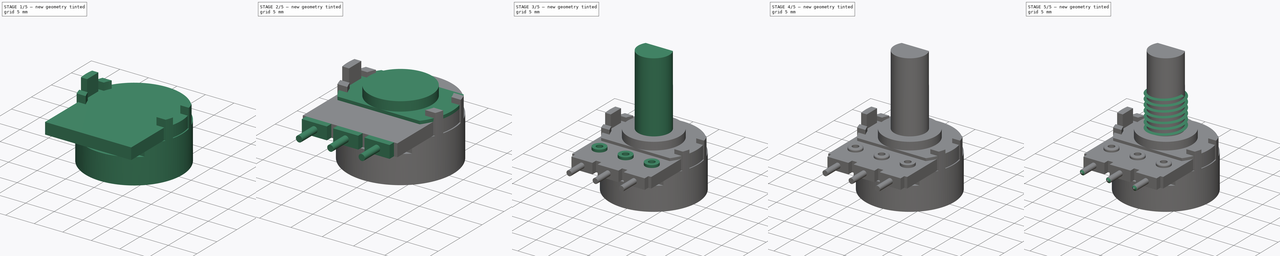
[diagram: build sequence overview — one tinted view per stage of 5, left to right]
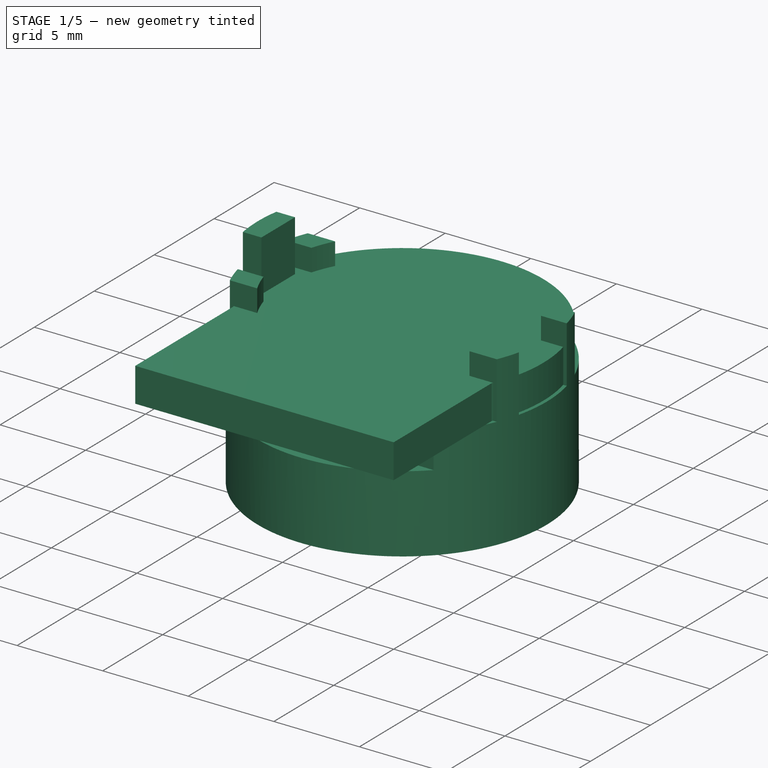
[diagram: stage 1 of 5 — iso view after this stage's code; geometry added in this stage tinted green]
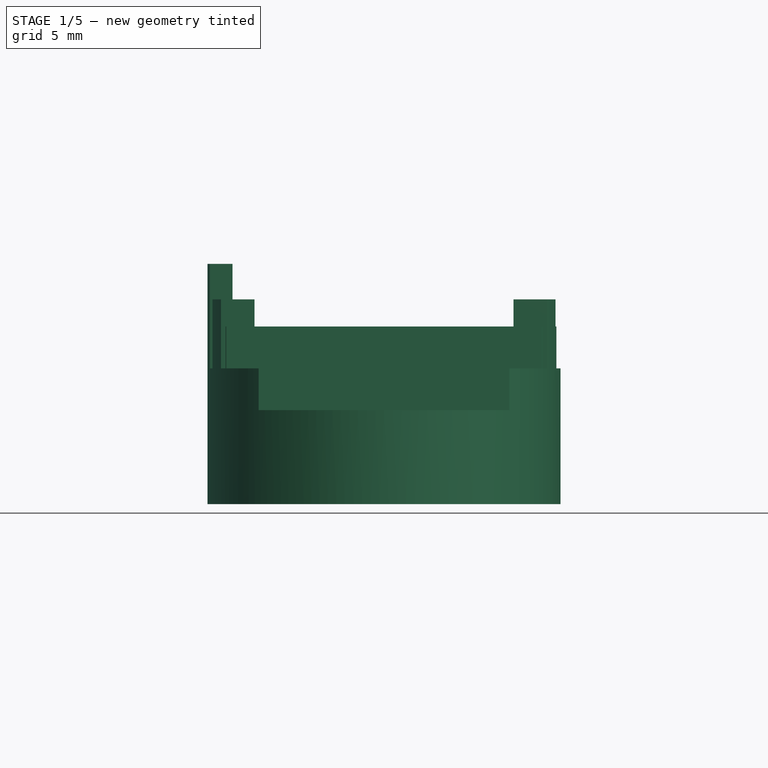
[diagram: stage 1 of 5 — front view after this stage's code; geometry added in this stage tinted green]
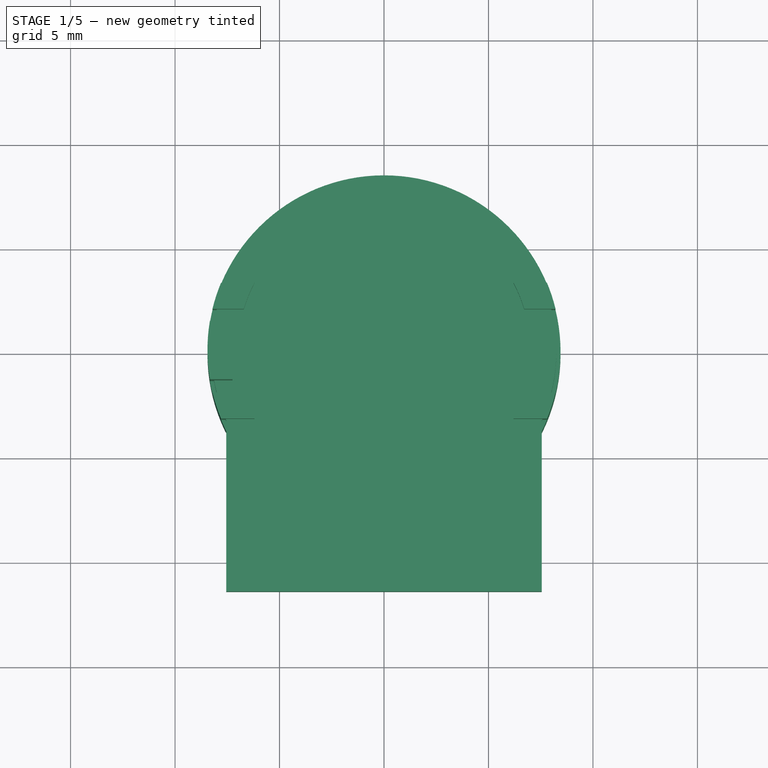
[diagram: stage 1 of 5 — top view after this stage's code; geometry added in this stage tinted green]
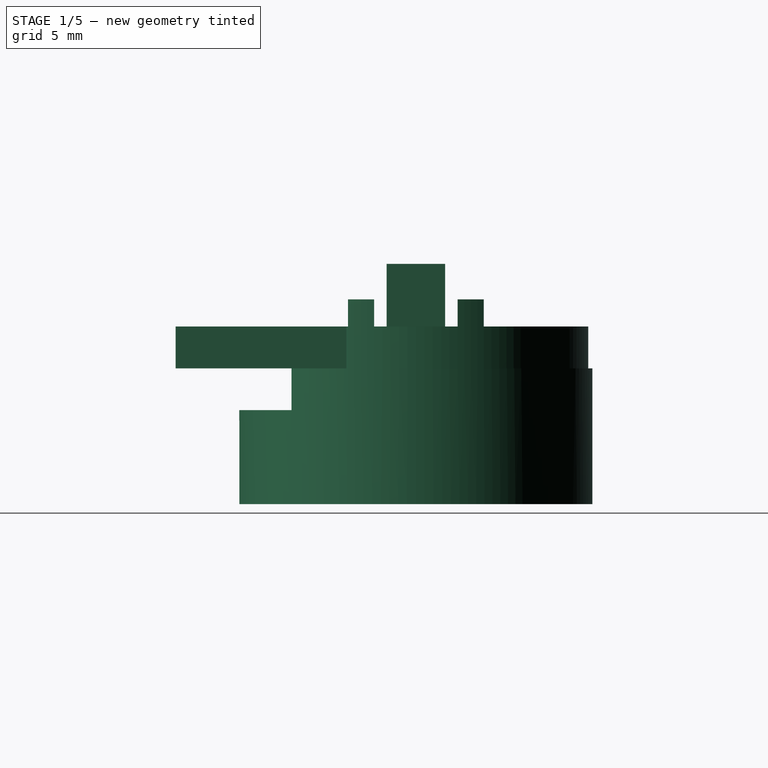
[diagram: stage 1 of 5 — right view after this stage's code; geometry added in this stage tinted green]
FCSTD DOCUMENT  (FreeCAD 0.19R24276 (Git))
Label: potenciometro
License: All rights reserved
LicenseURL: http://en.wikipedia.org/wiki/All_rights_reserved
objects: Sketcher::SketchObject×18, PartDesign::Pad×11, PartDesign::Pocket×5, PartDesign::Fillet×3, PartDesign::Chamfer×3, Part::Helix×1, Part::Sweep×1, PartDesign::Body×1
note: 65 computed .brp shape members not serialized (recipe doc carries the construction recipe); baked Part::Feature solids carry a one-line shape summary decoded from their .brp

FEATURE [Sketcher::SketchObject] Sketch
  FullyConstrained = true
  MapMode = 5
  Support = -> [XY_Plane]
  sketch-geometry (1):
    g0: Circle CenterX=0 CenterY=0 CenterZ=0 NormalX=0 NormalY=0 NormalZ=1 AngleXU=0 Radius=8.45
  constraints (2):
    c: Coincident(g0,g-1)
    c: Diameter(g0) = 16.9
FEATURE [PartDesign::Pad] Pad  label="base circular"
  Direction = (1,1,1)
  Length = 6.5
  Length2 = 100
  Profile = -> Sketch
  Type = 0
FEATURE [Sketcher::SketchObject] Sketch001
  FullyConstrained = false
  MapMode = 5
  Placement = pos=(0,0,6.5) rot=(0,0,1;0rad)
  Support = -> [Pad]
  sketch-geometry (8):
    g0: Circle CenterX=0 CenterY=0 CenterZ=0 NormalX=0 NormalY=0 NormalZ=1 AngleXU=0 Radius=8.45
    g1: LineSegment StartX=0 StartY=0 StartZ=0 EndX=0 EndY=-8.45 EndZ=0
    g2: GeomPoint X=0 Y=-5.95 Z=0
    g3: LineSegment StartX=0 StartY=-5.95 StartZ=0 EndX=8.5981 EndY=-5.95 EndZ=0
    g4: LineSegment StartX=0 StartY=-5.95 StartZ=0 EndX=-7.67045 EndY=-5.95 EndZ=0
    g5: LineSegment StartX=-7.67045 StartY=-5.95 StartZ=0 EndX=-7.67045 EndY=-9.14798 EndZ=0
    g6: LineSegment StartX=-7.67045 StartY=-9.14798 StartZ=0 EndX=8.5981 EndY=-9.14798 EndZ=0
    g7: LineSegment StartX=8.5981 StartY=-9.14798 StartZ=0 EndX=8.5981 EndY=-5.95 EndZ=0
  constraints (15):
    c: Coincident(g0,g-1)
    c: Diameter(g0) = 16.9
    c: Coincident(g1,g-1)
    c: PointOnObject(g1,g0)
    c: Vertical(g1)
    c: PointOnObject(g2,g1)
    c: DistanceY(g1,g2) = 2.5
    c: Coincident(g3,g2)
    c: Horizontal(g3)
    c: Coincident(g4,g3)
    c: Horizontal(g4)
    c: Vertical(g5)
    c: Horizontal(g6)
    c: Coincident(g7,g3)
    c: Vertical(g7)
FEATURE [PartDesign::Pocket] Pocket  label="base extrude"
  BaseFeature = -> Pad
  Length = 2
  Length2 = 100
  Profile = -> Sketch001
  Type = 0
FEATURE [Sketcher::SketchObject] Sketch002
  FullyConstrained = false
  MapMode = 5
  Placement = pos=(0,0,6.5) rot=(0,0,1;0rad)
  Support = -> [Pocket]
  sketch-geometry (8):
    g0: ArcOfCircle CenterX=0 CenterY=0 CenterZ=0 NormalX=0 NormalY=0 NormalZ=1 AngleXU=0 Radius=8.45 StartAngle=2.97514 EndAngle=3.30804
    g1: LineSegment StartX=0 StartY=0 StartZ=0 EndX=0 EndY=1.4 EndZ=0
    g2: LineSegment StartX=0 StartY=0 StartZ=0 EndX=0 EndY=-1.4 EndZ=0
    g3: GeomPoint X=-7.25 Y=0 Z=0
    g4: LineSegment StartX=-7.25 StartY=0 StartZ=0 EndX=-7.25 EndY=1.4 EndZ=0
    g5: LineSegment StartX=-7.25 StartY=0 StartZ=0 EndX=-7.25 EndY=-1.4 EndZ=0
    g6: LineSegment StartX=-8.33322 StartY=1.4 StartZ=0 EndX=-7.25 EndY=1.4 EndZ=0
    g7: LineSegment StartX=-8.33322 StartY=-1.4 StartZ=0 EndX=-7.25 EndY=-1.4 EndZ=0
  constraints (15):
    c: Coincident(g0,g-1)
    c: Diameter(g0) = 16.9
    c: Coincident(g1,g0)
    c: PointOnObject(g1,g-2)
    c: Coincident(g2,g0)
    c: Symmetric(g2,g1,g0)
    c: DistanceY(g2,g1) = 2.8
    c: Coincident(g4,g3)
    c: Vertical(g4)
    c: Coincident(g5,g4)
    c: Vertical(g5)
    c: Coincident(g6,g4)
    c: Coincident(g7,g5)
    c: Coincident(g0,g6)
    c: Coincident(g0,g7)
FEATURE [PartDesign::Pad] Pad001  label="cubo costado"
  BaseFeature = -> Pocket
  Direction = (1,1,1)
  Length = 5
  Length2 = 100
  Profile = -> Sketch002
  Type = 0
FEATURE [Sketcher::SketchObject] Sketch003
  FullyConstrained = false
  MapMode = 5
  Placement = pos=(0,0,6.5) rot=(0,0,1;0rad)
  Support = -> [Pad001]
  sketch-geometry (28):
    g0: LineSegment StartX=0 StartY=0 StartZ=0 EndX=0 EndY=8.45 EndZ=0
    g1: LineSegment StartX=0 StartY=0 StartZ=0 EndX=-1.6e-15 EndY=-8.45 EndZ=0
    g2: LineSegment StartX=0 StartY=0 StartZ=0 EndX=7.8 EndY=0 EndZ=0
    g3: LineSegment StartX=0 StartY=0 StartZ=0 EndX=-7.8 EndY=0 EndZ=0
    g4: LineSegment StartX=-7.8 StartY=0 StartZ=0 EndX=-7.8 EndY=3.25 EndZ=0
    g5: LineSegment StartX=-7.8 StartY=0 StartZ=0 EndX=-7.8 EndY=-3.25 EndZ=0
    g6: LineSegment StartX=7.8 StartY=0 StartZ=0 EndX=7.8 EndY=3.25 EndZ=0
    g7: LineSegment StartX=7.8 StartY=0 StartZ=0 EndX=7.8 EndY=-3.25 EndZ=0
    g8: ArcOfCircle CenterX=0 CenterY=0 CenterZ=0 NormalX=0 NormalY=0 NormalZ=1 AngleXU=0 Radius=8.45 StartAngle=5.88839 EndAngle=6.04423
    g9: ArcOfCircle CenterX=0 CenterY=0 CenterZ=0 NormalX=0 NormalY=0 NormalZ=1 AngleXU=0 Radius=7 StartAngle=5.80036 EndAngle=5.99343
    g10: LineSegment StartX=7.8 StartY=-3.25 StartZ=0 EndX=6.1998 EndY=-3.25 EndZ=0
    g11: GeomPoint X=-7.8 Y=2 Z=0
    g12: GeomPoint X=7.8 Y=2 Z=0
    g13: LineSegment StartX=7.8 StartY=0 StartZ=0 EndX=7.8 EndY=-2 EndZ=0
    g14: LineSegment StartX=-7.8 StartY=0 StartZ=0 EndX=-7.8 EndY=-2 EndZ=0
    g15: ArcOfCircle CenterX=0 CenterY=0 CenterZ=0 NormalX=0 NormalY=0 NormalZ=1 AngleXU=0 Radius=7 StartAngle=0.289752 EndAngle=0.482828
    g16: ArcOfCircle CenterX=0 CenterY=0 CenterZ=0 NormalX=0 NormalY=0 NormalZ=1 AngleXU=0 Radius=7 StartAngle=2.65876 EndAngle=2.85184
    g17: ArcOfCircle CenterX=0 CenterY=0 CenterZ=0 NormalX=0 NormalY=0 NormalZ=1 AngleXU=0 Radius=7 StartAngle=3.43134 EndAngle=3.62442
    g18: ArcOfCircle CenterX=0 CenterY=0 CenterZ=0 NormalX=0 NormalY=0 NormalZ=1 AngleXU=0 Radius=8.45 StartAngle=2.7468 EndAngle=2.90264
    g19: ArcOfCircle CenterX=0 CenterY=0 CenterZ=0 NormalX=0 NormalY=0 NormalZ=1 AngleXU=0 Radius=8.45 StartAngle=0.238954 EndAngle=0.394791
    g20: ArcOfCircle CenterX=0 CenterY=0 CenterZ=0 NormalX=0 NormalY=0 NormalZ=1 AngleXU=0 Radius=8.45 StartAngle=3.38055 EndAngle=3.53638
    g21: LineSegment StartX=-8.2099 StartY=-2 StartZ=0 EndX=-6.7082 EndY=-2 EndZ=0
    g22: LineSegment StartX=-7.8 StartY=-3.25 StartZ=0 EndX=-6.1998 EndY=-3.25 EndZ=0
    g23: LineSegment StartX=-8.2099 StartY=2 StartZ=0 EndX=-6.7082 EndY=2 EndZ=0
    g24: LineSegment StartX=-7.8 StartY=3.25 StartZ=0 EndX=-6.1998 EndY=3.25 EndZ=0
    g25: LineSegment StartX=6.7082 StartY=2 StartZ=0 EndX=8.2099 EndY=2 EndZ=0
    g26: LineSegment StartX=6.1998 StartY=3.25 StartZ=0 EndX=7.8 EndY=3.25 EndZ=0
    g27: LineSegment StartX=6.7082 StartY=-2 StartZ=0 EndX=8.2099 EndY=-2 EndZ=0
  constraints (73):
    c: Coincident(g0,g-1)
    c: PointOnObject(g0,g-2)
    c: Coincident(g1,g-1)
    c: PointOnObject(g1,g-2)
    c: DistanceY(g0,g0) = 8.45
    c: DistanceY(g1,g1) = 8.45
    c: Coincident(g2,g-1)
    c: PointOnObject(g2,g-1)
    c: Coincident(g3,g-1)
    c: PointOnObject(g3,g-1)
    c: DistanceX(g2,g2) = 7.8
    c: DistanceX(g3,g3) = 7.8
    c: Coincident(g4,g3)
    c: Vertical(g4)
    c: Coincident(g5,g3)
    c: Coincident(g6,g2)
    c: Vertical(g6)
    c: Coincident(g7,g2)
    c: Vertical(g7)
    c: Vertical(g5)
    c: Coincident(g8,g-1)
    c: PointOnObject(g4,g8)
    c: PointOnObject(g6,g8)
    c: Coincident(g9,g8)
    c: Diameter(g9) = 14
    c: Coincident(g10,g7)
    c: Horizontal(g10)
    c: PointOnObject(g11,g4)
    c: DistanceY(g3,g11) = 2
    c: PointOnObject(g12,g6)
    c: DistanceY(g2,g12) = 2
    c: Coincident(g13,g2)
    c: PointOnObject(g13,g7)
    c: Coincident(g14,g3)
    c: PointOnObject(g14,g5)
    c: DistanceY(g13,g2) = 2
    c: DistanceY(g14,g3) = 2
    c: Coincident(g9,g10)
    c: Equal(g9,g15)
    c: Coincident(g9,g15)
    c: Equal(g15,g16)
    c: Coincident(g15,g16)
    c: Equal(g16,g17)
    c: Coincident(g16,g17)
    c: Equal(g8,g18)
    c: Coincident(g8,g18)
    c: Equal(g8,g19)
    c: Coincident(g8,g19)
    c: Equal(g18,g20)
    c: Coincident(g18,g20)
    c: Coincident(g21,g20)
    c: Coincident(g21,g17)
    c: Horizontal(g21)
    c: Coincident(g22,g20)
    c: Coincident(g22,g17)
    c: Horizontal(g22)
    c: Coincident(g23,g18)
    c: Coincident(g23,g16)
    c: Horizontal(g23)
    c: Coincident(g24,g18)
    c: Coincident(g24,g16)
    c: Horizontal(g24)
    c: Coincident(g25,g15)
    c: Coincident(g25,g19)
    c: Horizontal(g25)
    c: Coincident(g26,g15)
    c: Coincident(g26,g6)
    c: Horizontal(g26)
    c: Coincident(g27,g9)
    c: Coincident(g27,g8)
    c: Horizontal(g27)
    c: Coincident(g8,g7)
    c: PointOnObject(g19,g6)
FEATURE [PartDesign::Pad] Pad002  label="cubosx4 costados"
  BaseFeature = -> Pad001
  Direction = (1,1,1)
  Length = 3.3
  Length2 = 100
  Profile = -> Sketch003
  Type = 0
FEATURE [Sketcher::SketchObject] Sketch004
  FullyConstrained = false
  MapMode = 5
  Placement = pos=(0,0,6.5) rot=(0,0,1;0rad)
  Support = -> [Pad002]
  sketch-geometry (6):
    g0: ArcOfCircle CenterX=0 CenterY=0 CenterZ=0 NormalX=0 NormalY=0 NormalZ=1 AngleXU=0 Radius=8.25 StartAngle=5.86827 EndAngle=9.83969
    g1: LineSegment StartX=0 StartY=0 StartZ=0 EndX=7.55 EndY=0 EndZ=0
    g2: LineSegment StartX=7.55 StartY=-3.32566 StartZ=0 EndX=-7.55 EndY=-3.32566 EndZ=0
    g3: LineSegment StartX=-7.55 StartY=-11.5 StartZ=0 EndX=7.55 EndY=-11.5 EndZ=0
    g4: LineSegment StartX=-7.55 StartY=-3.32566 StartZ=0 EndX=-7.55 EndY=-11.5 EndZ=0
    g5: LineSegment StartX=7.55 StartY=-11.5 StartZ=0 EndX=7.55 EndY=-3.32566 EndZ=0
  constraints (12):
    c: Coincident(g0,g-1)
    c: Diameter(g0) = 16.5
    c: Coincident(g1,g0)
    c: PointOnObject(g1,g-1)
    c: DistanceX(g1,g1) = 7.55
    c: Horizontal(g2)
    c: DistanceY(g3,g1) = 11.5
    c: Coincident(g4,g2)
    c: Vertical(g4)
    c: Coincident(g3,g4)
    c: Coincident(g0,g2)
    c: Coincident(g0,g2)
FEATURE [PartDesign::Pad] Pad003  label=" rect para pines"
  BaseFeature = -> Pad002
  Direction = (1,1,1)
  Length = 2
  Length2 = 100
  Profile = -> Sketch004
  Type = 0
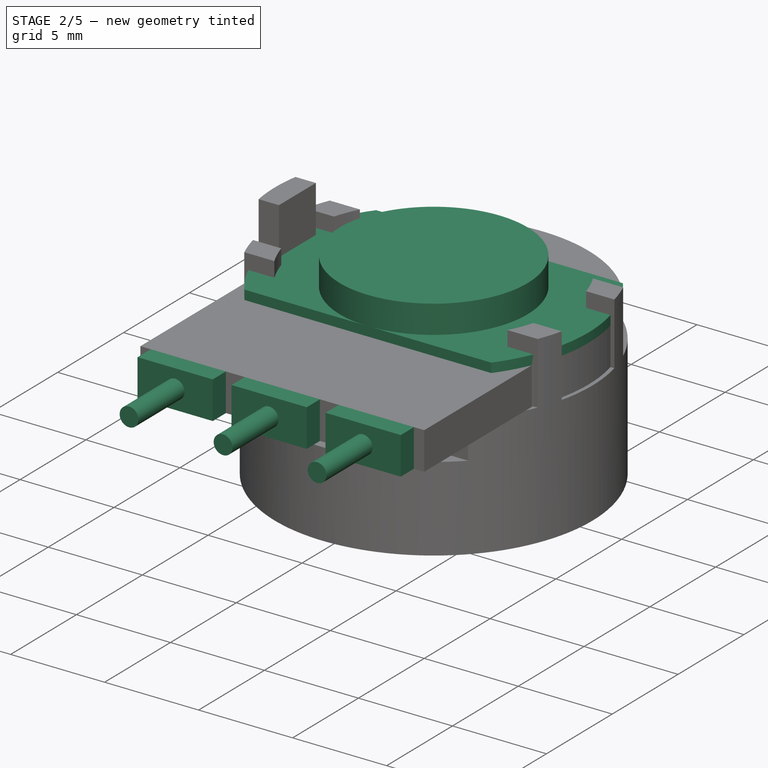
[diagram: stage 2 of 5 — iso view after this stage's code; geometry added in this stage tinted green]
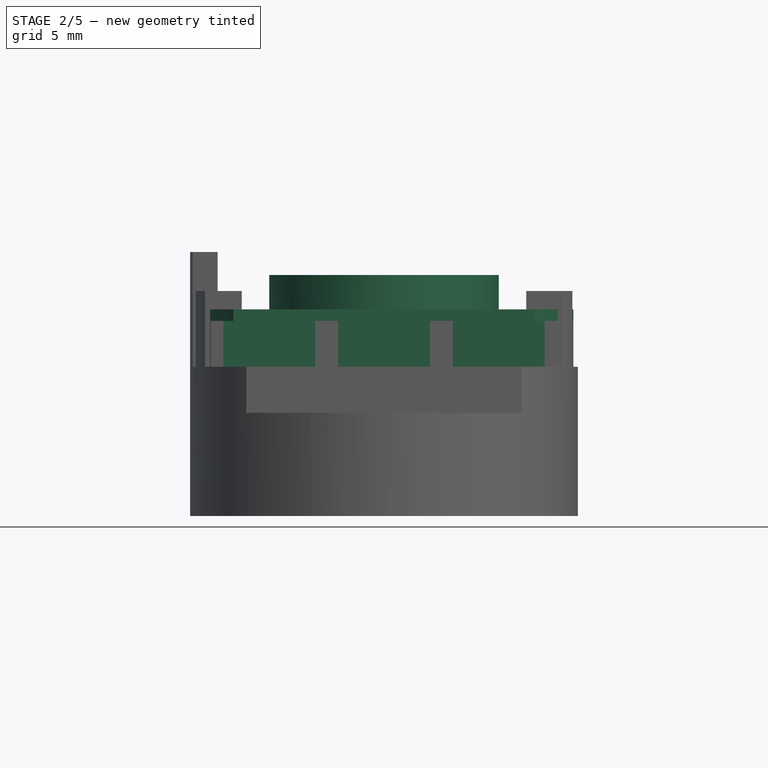
[diagram: stage 2 of 5 — front view after this stage's code; geometry added in this stage tinted green]
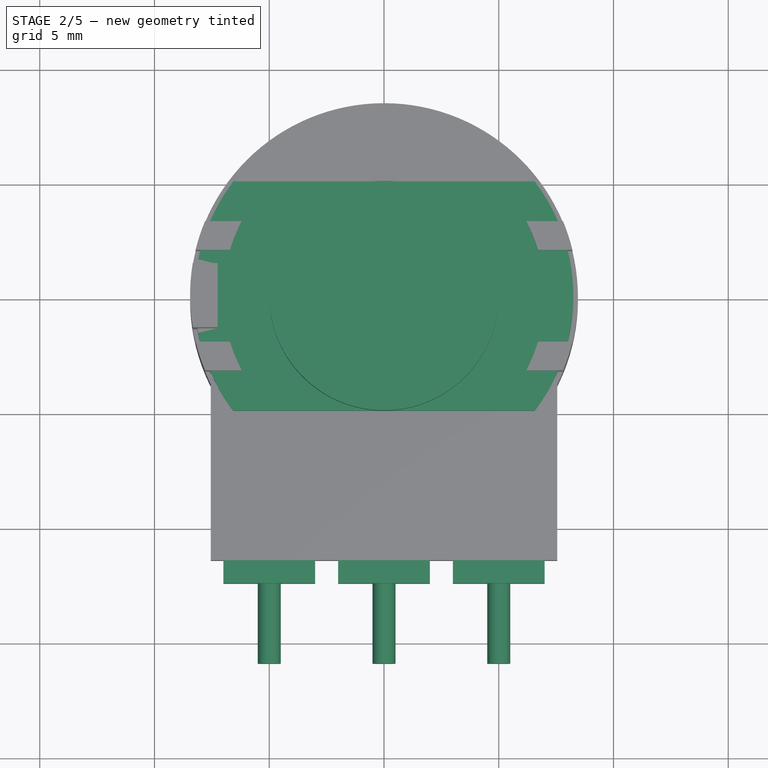
[diagram: stage 2 of 5 — top view after this stage's code; geometry added in this stage tinted green]
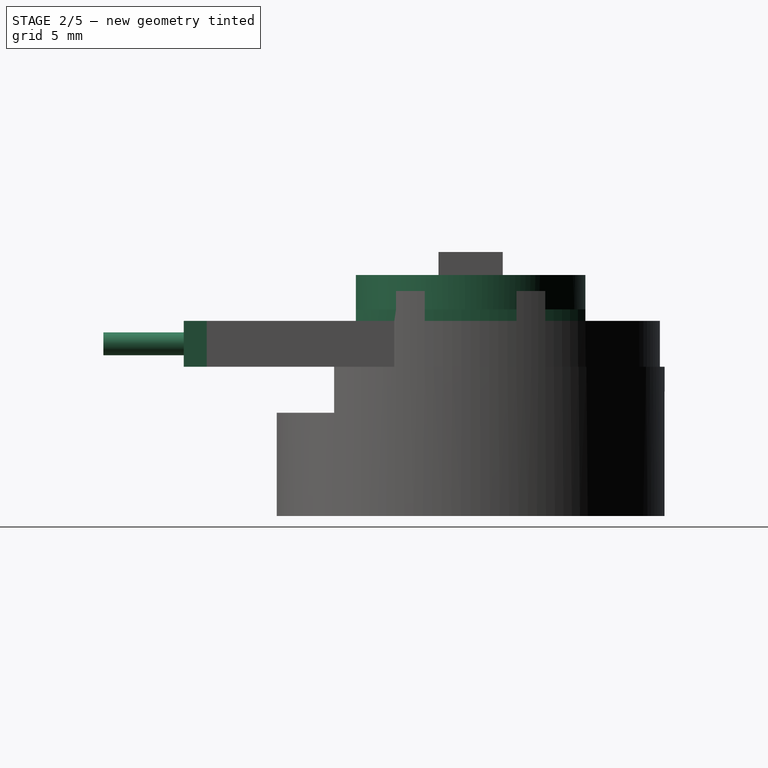
[diagram: stage 2 of 5 — right view after this stage's code; geometry added in this stage tinted green]
FEATURE [Sketcher::SketchObject] Sketch005
  ExternalGeometry = -> [Pad003]
  FullyConstrained = true
  MapMode = 5
  Placement = pos=(-1.4e-15,-11.5,0) rot=(1,0,0;1.5708rad)
  Support = -> [Pad003]
  sketch-geometry (18):
    g0: GeomPoint X=3.4e-15 Y=8.5 Z=0
    g1: GeomPoint X=5 Y=8.5 Z=0
    g2: GeomPoint X=-5 Y=8.5 Z=0
    g3: LineSegment StartX=-5 StartY=8.5 StartZ=0 EndX=-3 EndY=8.5 EndZ=0
    g4: LineSegment StartX=-5 StartY=8.5 StartZ=0 EndX=-7 EndY=8.5 EndZ=0
    g5: LineSegment StartX=5 StartY=8.5 StartZ=0 EndX=7 EndY=8.5 EndZ=0
    g6: LineSegment StartX=5 StartY=8.5 StartZ=0 EndX=3 EndY=8.5 EndZ=0
    g7: LineSegment StartX=7 StartY=8.5 StartZ=0 EndX=7 EndY=6.5 EndZ=0
    g8: LineSegment StartX=3 StartY=8.5 StartZ=0 EndX=3 EndY=6.5 EndZ=0
    g9: LineSegment StartX=3 StartY=6.5 StartZ=0 EndX=7 EndY=6.5 EndZ=0
    g10: LineSegment StartX=-7 StartY=8.5 StartZ=0 EndX=-7 EndY=6.5 EndZ=0
    g11: LineSegment StartX=-7 StartY=6.5 StartZ=0 EndX=-3 EndY=6.5 EndZ=0
    g12: LineSegment StartX=-3 StartY=8.5 StartZ=0 EndX=-3 EndY=6.5 EndZ=0
    g13: LineSegment StartX=3.4e-15 StartY=8.5 StartZ=0 EndX=2 EndY=8.5 EndZ=0
    g14: LineSegment StartX=3.4e-15 StartY=8.5 StartZ=0 EndX=-2 EndY=8.5 EndZ=0
    g15: LineSegment StartX=-2 StartY=8.5 StartZ=0 EndX=-2 EndY=6.5 EndZ=0
    g16: LineSegment StartX=-2 StartY=6.5 StartZ=0 EndX=2 EndY=6.5 EndZ=0
    g17: LineSegment StartX=2 StartY=8.5 StartZ=0 EndX=2 EndY=6.5 EndZ=0
  constraints (44):
    c: Symmetric(g-3,g-3,g0)
    c: PointOnObject(g1,g-3)
    c: PointOnObject(g2,g-3)
    c: DistanceX(g0,g1) = 5
    c: DistanceX(g2,g0) = 5
    c: Coincident(g3,g2)
    c: PointOnObject(g3,g-3)
    c: Coincident(g4,g3)
    c: Coincident(g5,g1)
    c: PointOnObject(g5,g-3)
    c: Coincident(g6,g5)
    c: Coincident(g7,g5)
    c: Coincident(g8,g6)
    c: Coincident(g9,g8)
    c: Coincident(g9,g7)
    c: Vertical(g7)
    c: Vertical(g8)
    c: Horizontal(g9)
    c: Coincident(g10,g4)
    c: Coincident(g11,g10)
    c: Coincident(g12,g3)
    c: Coincident(g12,g11)
    c: Coincident(g13,g0)
    c: PointOnObject(g13,g-3)
    c: Coincident(g14,g13)
    c: Coincident(g15,g14)
    c: Coincident(g16,g15)
    c: Horizontal(g16)
    c: Coincident(g17,g13)
    c: Coincident(g17,g16)
    c: Vertical(g17)
    c: Vertical(g15)
    c: Vertical(g12)
    c: Vertical(g10)
    c: Horizontal(g11)
    c: DistanceY(g16,g13) = 2
    c: DistanceY(g8,g8) = 2
    c: DistanceY(g12,g12) = 2
    c: Symmetric(g14,g13,g13)
    c: Symmetric(g4,g3,g3)
    c: Symmetric(g6,g5,g5)
    c: DistanceX(g6,g5) = 4
    c: DistanceX(g14,g13) = 4
    c: DistanceX(g4,g3) = 4
FEATURE [PartDesign::Pad] Pad004  label="pre pines"
  BaseFeature = -> Pad003
  Direction = (1,1,1)
  Length = 1
  Length2 = 100
  Profile = -> Sketch005
  Type = 0
FEATURE [Sketcher::SketchObject] Sketch006
  ExternalGeometry = -> [Pad004]
  FullyConstrained = true
  MapMode = 5
  Placement = pos=(-2.3e-15,-12.5,3.8e-15) rot=(1,0,0;1.5708rad)
  Support = -> [Pad004]
  sketch-geometry (10):
    g0: LineSegment StartX=-2 StartY=8.5 StartZ=0 EndX=-2 EndY=7.5 EndZ=0
    g1: LineSegment StartX=3 StartY=8.5 StartZ=0 EndX=3 EndY=7.5 EndZ=0
    g2: LineSegment StartX=-3 StartY=8.5 StartZ=0 EndX=-3 EndY=7.5 EndZ=0
    g3: GeomPoint X=0 Y=6.5 Z=0
    g4: LineSegment StartX=0 StartY=6.5 StartZ=0 EndX=0 EndY=7.5 EndZ=0
    g5: Circle CenterX=0 CenterY=7.5 CenterZ=0 NormalX=0 NormalY=0 NormalZ=1 AngleXU=0 Radius=0.5
    g6: LineSegment StartX=-5 StartY=8.5 StartZ=0 EndX=-5 EndY=7.5 EndZ=0
    g7: Circle CenterX=-5 CenterY=7.5 CenterZ=0 NormalX=0 NormalY=0 NormalZ=1 AngleXU=0 Radius=0.5
    g8: LineSegment StartX=5 StartY=8.5 StartZ=0 EndX=5 EndY=7.5 EndZ=0
    g9: Circle CenterX=5 CenterY=7.5 CenterZ=0 NormalX=0 NormalY=0 NormalZ=1 AngleXU=0 Radius=0.5
  constraints (26):
    c: Coincident(g0,g-7)
    c: Vertical(g0)
    c: Coincident(g1,g-3)
    c: Coincident(g2,g-8)
    c: Vertical(g1)
    c: Vertical(g2)
    c: DistanceY(g1,g1) = 1
    c: DistanceY(g0,g0) = 1
    c: DistanceY(g2,g2) = 1
    c: PointOnObject(g3,g-4)
    c: PointOnObject(g3,g-2)
    c: Coincident(g4,g3)
    c: Vertical(g4)
    c: DistanceY(g4,g4) = 1
    c: Coincident(g5,g4)
    c: Diameter(g5) = 1
    c: Coincident(g6,g-9)
    c: Vertical(g6)
    c: DistanceY(g6,g6) = 1
    c: Coincident(g7,g6)
    c: Diameter(g7) = 1
    c: Coincident(g8,g-10)
    c: Vertical(g8)
    c: DistanceY(g8,g8) = 1
    c: Coincident(g9,g8)
    c: Diameter(g9) = 1
FEATURE [PartDesign::Pad] Pad005  label="pines"
  BaseFeature = -> Pad004
  Direction = (1,1,1)
  Length = 3.5
  Length2 = 100
  Profile = -> Sketch006
  Type = 0
FEATURE [Sketcher::SketchObject] Sketch007
  FullyConstrained = true
  MapMode = 5
  Placement = pos=(0,0,8.5) rot=(0,0,1;0rad)
  Support = -> [Pad005]
  sketch-geometry (9):
    g0: Circle CenterX=0 CenterY=0 CenterZ=0 NormalX=0 NormalY=0 NormalZ=1 AngleXU=0 Radius=5
    g1: LineSegment StartX=0 StartY=0 StartZ=0 EndX=0 EndY=5 EndZ=0
    g2: ArcOfCircle CenterX=0 CenterY=0 CenterZ=0 NormalX=0 NormalY=0 NormalZ=1 AngleXU=0 Radius=8.25 StartAngle=2.49049 EndAngle=3.79269
    g3: LineSegment StartX=0 StartY=5 StartZ=0 EndX=6.5622 EndY=5 EndZ=0
    g4: LineSegment StartX=0 StartY=5 StartZ=0 EndX=-6.56219 EndY=5.00002 EndZ=0
    g5: GeomPoint X=0 Y=-5 Z=0
    g6: LineSegment StartX=0 StartY=-5 StartZ=0 EndX=6.5622 EndY=-5 EndZ=0
    g7: LineSegment StartX=0 StartY=-5 StartZ=0 EndX=-6.5622 EndY=-5 EndZ=0
    g8: ArcOfCircle CenterX=0 CenterY=0 CenterZ=0 NormalX=0 NormalY=0 NormalZ=1 AngleXU=0 Radius=8.25 StartAngle=5.63209 EndAngle=6.93428
  constraints (23):
    c: Coincident(g0,g-1)
    c: Diameter(g0) = 10
    c: Coincident(g1,g-1)
    c: PointOnObject(g1,g0)
    c: Vertical(g1)
    c: Coincident(g2,g-1)
    c: Diameter(g2) = 16.5
    c: Coincident(g3,g1)
    c: Tangent(g3,g0)
    c: Coincident(g4,g3)
    c: Tangent(g4,g0)
    c: PointOnObject(g5,g0)
    c: PointOnObject(g5,g-2)
    c: Coincident(g6,g5)
    c: Horizontal(g6)
    c: Coincident(g7,g6)
    c: Horizontal(g7)
    c: Coincident(g2,g4)
    c: Coincident(g8,g3)
    c: Equal(g2,g8)
    c: Coincident(g2,g7)
    c: Coincident(g8,g6)
    c: Coincident(g2,g8)
FEATURE [PartDesign::Pad] Pad006  label="metal medio"
  BaseFeature = -> Pad005
  Direction = (1,1,1)
  Length = 0.5
  Length2 = 100
  Profile = -> Sketch007
  Type = 0
FEATURE [Sketcher::SketchObject] Sketch008
  FullyConstrained = true
  MapMode = 5
  Placement = pos=(0,0,9) rot=(0,0,1;0rad)
  Support = -> [Pad006]
  sketch-geometry (1):
    g0: Circle CenterX=0 CenterY=0 CenterZ=0 NormalX=0 NormalY=0 NormalZ=1 AngleXU=0 Radius=5
  constraints (2):
    c: Coincident(g0,g-1)
    c: Diameter(g0) = 10
FEATURE [PartDesign::Pad] Pad007  label="circulo medio"
  BaseFeature = -> Pad006
  Direction = (1,1,1)
  Length = 1.5
  Length2 = 100
  Profile = -> Sketch008
  Type = 0
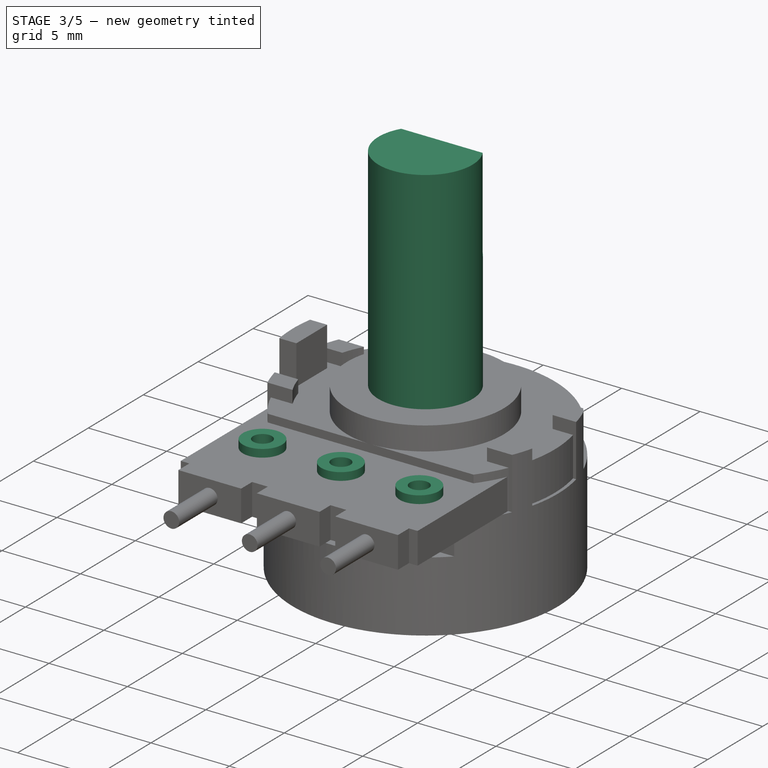
[diagram: stage 3 of 5 — iso view after this stage's code; geometry added in this stage tinted green]
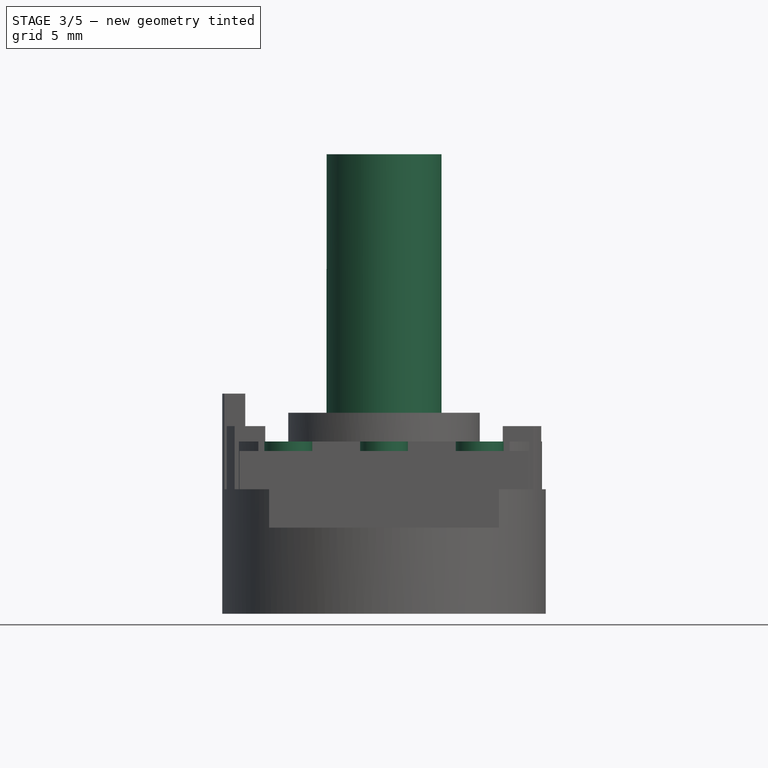
[diagram: stage 3 of 5 — front view after this stage's code; geometry added in this stage tinted green]
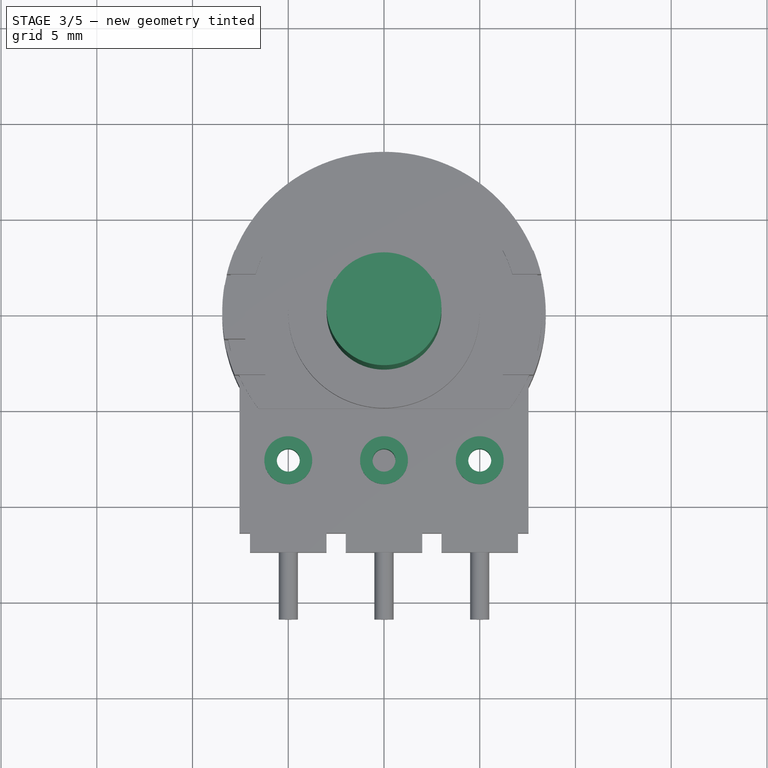
[diagram: stage 3 of 5 — top view after this stage's code; geometry added in this stage tinted green]
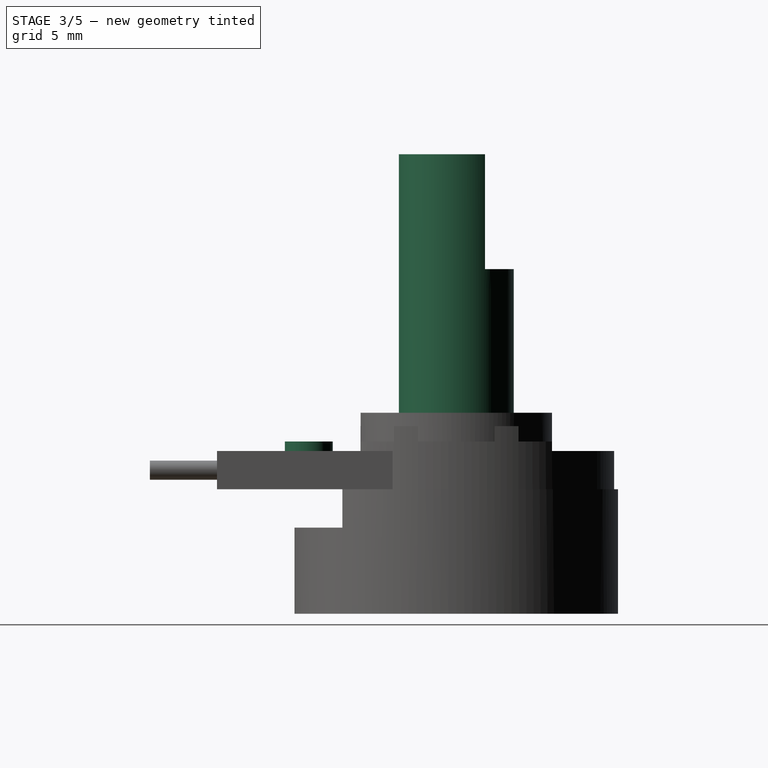
[diagram: stage 3 of 5 — right view after this stage's code; geometry added in this stage tinted green]
FEATURE [Sketcher::SketchObject] Sketch009
  ExternalGeometry = -> [Pad007]
  FullyConstrained = false
  MapMode = 5
  Placement = pos=(0,0,8.5) rot=(0,0,1;0rad)
  Support = -> [Pad007]
  sketch-geometry (6):
    g0: LineSegment StartX=0 StartY=-11.5 StartZ=0 EndX=0 EndY=-7.7 EndZ=0
    g1: LineSegment StartX=0 StartY=-7.7 StartZ=0 EndX=5 EndY=-7.7 EndZ=0
    g2: LineSegment StartX=0 StartY=-7.7 StartZ=0 EndX=-5 EndY=-7.7 EndZ=0
    g3: Circle CenterX=0 CenterY=-7.7 CenterZ=0 NormalX=0 NormalY=0 NormalZ=1 AngleXU=0 Radius=1.25
    g4: Circle CenterX=5 CenterY=-7.7 CenterZ=0 NormalX=0 NormalY=0 NormalZ=1 AngleXU=0 Radius=1.25
    g5: Circle CenterX=-5 CenterY=-7.7 CenterZ=0 NormalX=0 NormalY=0 NormalZ=1 AngleXU=0 Radius=1.25
  constraints (12):
    c: Coincident(g0,g-4)
    c: PointOnObject(g0,g-2)
    c: DistanceY(g0,g0) = 3.8
    c: Coincident(g1,g0)
    c: Horizontal(g1)
    c: Coincident(g2,g0)
    c: Horizontal(g2)
    c: DistanceX(g1,g1) = 5
    c: DistanceX(g2,g2) = 5
    c: Diameter(g4) = 2.5
    c: Diameter(g3) = 2.5
    c: Diameter(g5) = 2.5
FEATURE [PartDesign::Pad] Pad008  label="circulosx3 abajo D2,5"
  BaseFeature = -> Pad007
  Direction = (1,1,1)
  Length = 0.5
  Length2 = 100
  Profile = -> Sketch009
  Type = 0
FEATURE [Sketcher::SketchObject] Sketch010
  ExternalGeometry = -> [Pad008]
  FullyConstrained = true
  MapMode = 5
  Placement = pos=(0,0,9) rot=(0,0,1;0rad)
  Support = -> [Pad008]
  sketch-geometry (3):
    g0: Circle CenterX=0 CenterY=-7.7 CenterZ=0 NormalX=0 NormalY=0 NormalZ=1 AngleXU=0 Radius=0.6
    g1: Circle CenterX=-5 CenterY=-7.7 CenterZ=0 NormalX=0 NormalY=0 NormalZ=1 AngleXU=0 Radius=0.6
    g2: Circle CenterX=5 CenterY=-7.7 CenterZ=0 NormalX=0 NormalY=0 NormalZ=1 AngleXU=0 Radius=0.6
  constraints (6):
    c: Coincident(g0,g-3)
    c: Coincident(g1,g-4)
    c: Coincident(g2,g-5)
    c: Diameter(g2) = 1.2
    c: Diameter(g0) = 1.2
    c: Diameter(g1) = 1.2
FEATURE [PartDesign::Pocket] Pocket001  label="circulosx3 abajo D1,2"
  BaseFeature = -> Pad008
  Length = 3
  Length2 = 100
  Profile = -> Sketch010
  Type = 0
FEATURE [Sketcher::SketchObject] Sketch011
  FullyConstrained = true
  MapMode = 5
  Placement = pos=(0,0,10.5) rot=(0,0,1;0rad)
  Support = -> [Pocket001]
  sketch-geometry (1):
    g0: Circle CenterX=0 CenterY=0 CenterZ=0 NormalX=0 NormalY=0 NormalZ=1 AngleXU=0 Radius=3
  constraints (2):
    c: Coincident(g0,g-1)
    c: Diameter(g0) = 6
FEATURE [PartDesign::Pad] Pad009  label="cilindro rosca"
  BaseFeature = -> Pocket001
  Direction = (1,1,1)
  Length = 6.5
  Length2 = 100
  Profile = -> Sketch011
  Type = 0
FEATURE [Sketcher::SketchObject] Sketch012
  FullyConstrained = true
  MapMode = 5
  Placement = pos=(0,0,17) rot=(0,0,1;0rad)
  Support = -> [Pad009]
  sketch-geometry (1):
    g0: Circle CenterX=0 CenterY=0 CenterZ=0 NormalX=0 NormalY=0 NormalZ=1 AngleXU=0 Radius=3
  constraints (2):
    c: Coincident(g0,g-1)
    c: Diameter(g0) = 6
FEATURE [PartDesign::Pad] Pad010  label="cilindro "
  BaseFeature = -> Pad009
  Direction = (1,1,1)
  Length = 7
  Length2 = 100
  Profile = -> Sketch012
  Type = 0
FEATURE [Sketcher::SketchObject] Sketch013
  FullyConstrained = false
  MapMode = 5
  Placement = pos=(0,0,24) rot=(0,0,1;0rad)
  Support = -> [Pad010]
  sketch-geometry (6):
    g0: LineSegment StartX=0 StartY=0 StartZ=0 EndX=0 EndY=1.5 EndZ=0
    g1: LineSegment StartX=0 StartY=1.5 StartZ=0 EndX=3.15952 EndY=1.5 EndZ=0
    g2: LineSegment StartX=0 StartY=1.5 StartZ=0 EndX=-3.0395 EndY=1.5 EndZ=0
    g3: LineSegment StartX=-3.0395 StartY=1.5 StartZ=0 EndX=-3.0395 EndY=3.5 EndZ=0
    g4: LineSegment StartX=-3.0395 StartY=3.5 StartZ=0 EndX=3.15952 EndY=3.5 EndZ=0
    g5: LineSegment StartX=3.15952 StartY=3.5 StartZ=0 EndX=3.15952 EndY=1.5 EndZ=0
  constraints (15):
    c: Coincident(g0,g-1)
    c: PointOnObject(g0,g-2)
    c: DistanceY(g0,g0) = 1.5
    c: Coincident(g1,g0)
    c: Horizontal(g1)
    c: Coincident(g2,g1)
    c: Coincident(g3,g2)
    c: Coincident(g4,g3)
    c: Horizontal(g4)
    c: Coincident(g5,g4)
    c: Coincident(g5,g1)
    c: Vertical(g5)
    c: Vertical(g3)
    c: Horizontal(g2)
    c: DistanceY(g5,g5) = 2
FEATURE [PartDesign::Pocket] Pocket002  label="vaciado cilindro "
  BaseFeature = -> Pad010
  Length = 6
  Length2 = 100
  Profile = -> Sketch013
  Type = 0
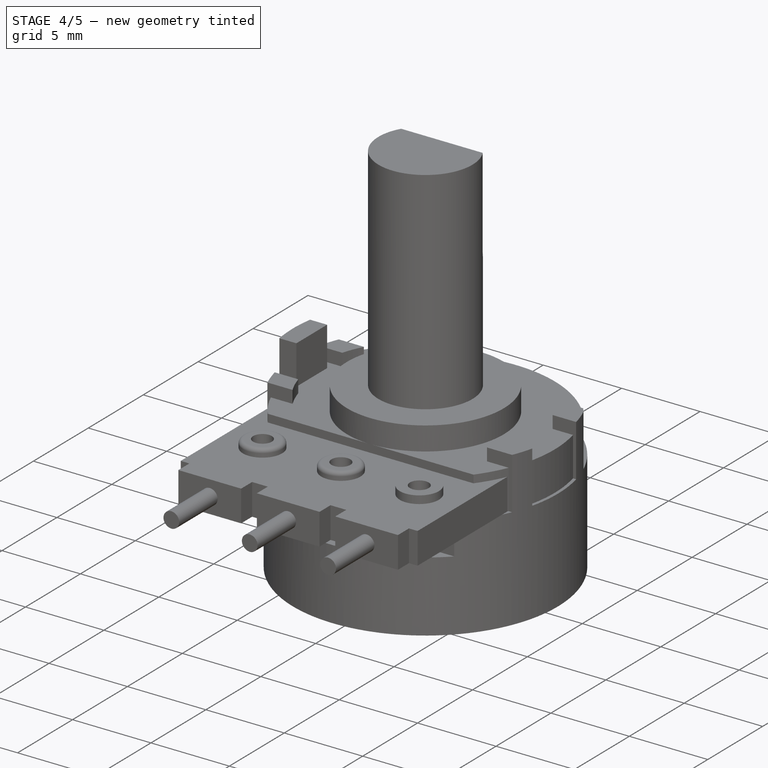
[diagram: stage 4 of 5 — iso view after this stage's code; geometry added in this stage tinted green]
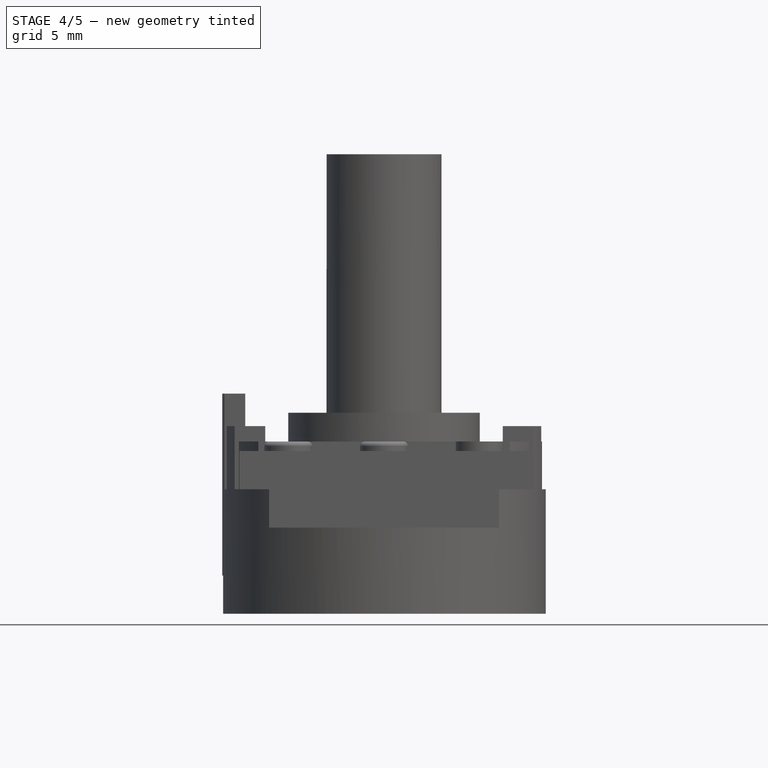
[diagram: stage 4 of 5 — front view after this stage's code; geometry added in this stage tinted green]
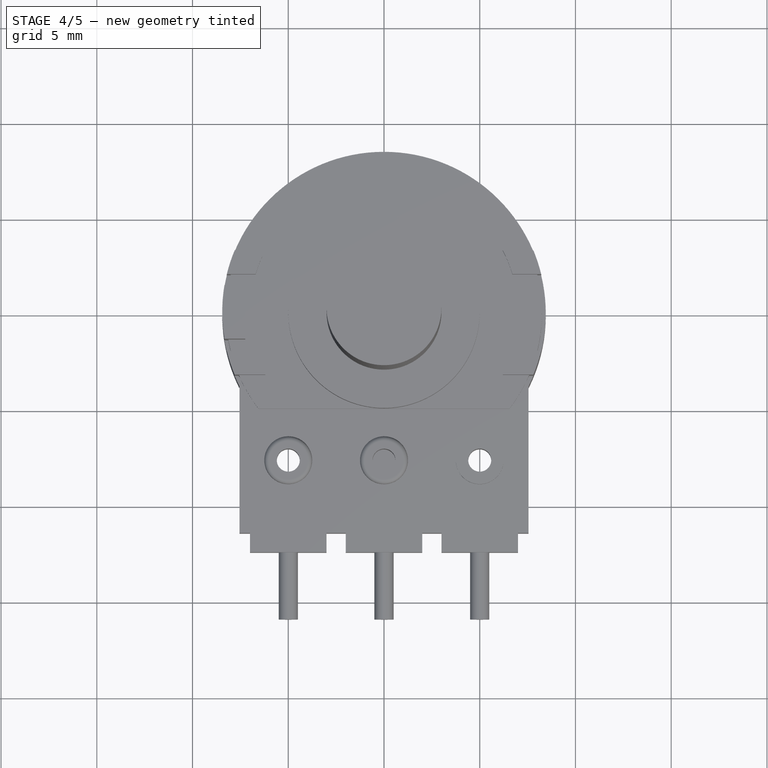
[diagram: stage 4 of 5 — top view after this stage's code; geometry added in this stage tinted green]
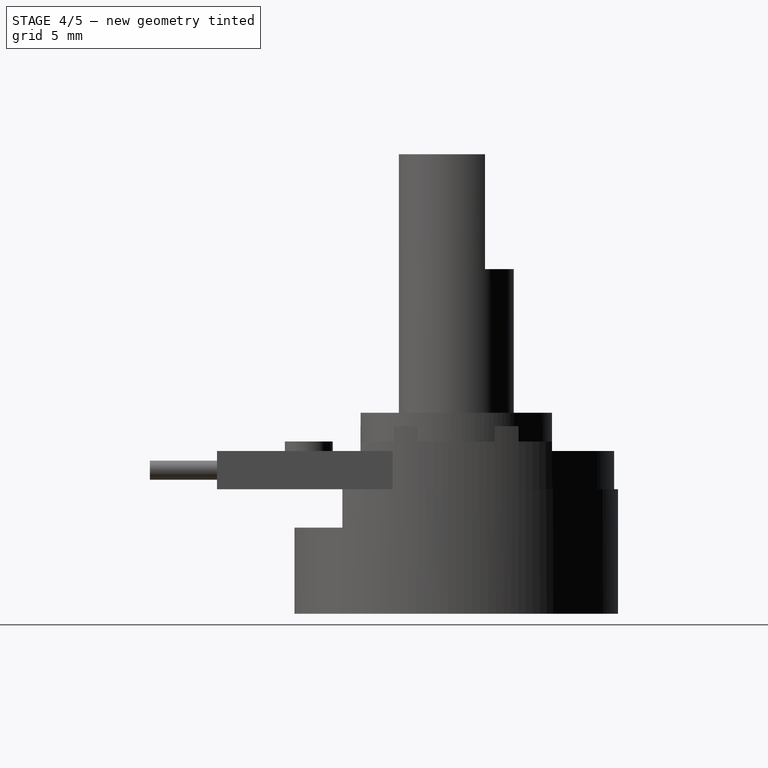
[diagram: stage 4 of 5 — right view after this stage's code; geometry added in this stage tinted green]
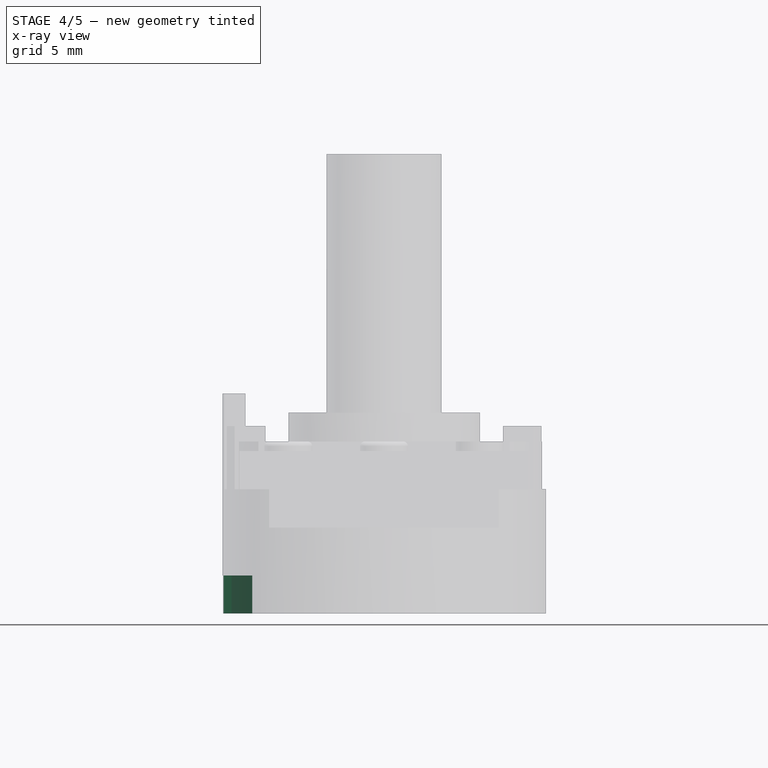
[diagram: stage 4 of 5 — x-ray composite at the front view; earlier geometry ghosted, this stage's added geometry solid]
FEATURE [Sketcher::SketchObject] Sketch014
  FullyConstrained = true
  MapMode = 5
  Placement = pos=(0,0,10.5) rot=(0,0,1;0rad)
  Support = -> [Pocket002]
FEATURE [Part::Helix] Helix  label="Hélice"
  Angle = 0
  AttacherType = Attacher::AttachEngine3D
  Height = 6.5
  LocalCoord = 0
  Pitch = 1
  Placement = pos=(0,0,10.5) rot=(0,0,1;3.14159rad)
  Radius = 3
  Style = 1
FEATURE [Sketcher::SketchObject] Sketch015
  FullyConstrained = true
  MapMode = 5
  Support = -> [XY_Plane]
FEATURE [PartDesign::Pocket] Pocket003
  BaseFeature = -> Pocket002
  Length = 5
  Length2 = 100
  Profile = -> Sketch013
  Type = 0
FEATURE [Sketcher::SketchObject] Sketch017
  ExternalGeometry = -> [Pocket003]
  FullyConstrained = false
  MapMode = 5
  Placement = pos=(0,0,0) rot=(1,0,0;3.14159rad)
  Support = -> [Pocket003]
  sketch-geometry (6):
    g0: LineSegment StartX=0 StartY=0 StartZ=0 EndX=-8.45 EndY=0 EndZ=0
    g1: LineSegment StartX=-8.45 StartY=0 StartZ=0 EndX=-8.45 EndY=-1.10458 EndZ=0
    g2: LineSegment StartX=-8.45 StartY=0 StartZ=0 EndX=-8.45 EndY=0.895416 EndZ=0
    g3: LineSegment StartX=-8.45 StartY=-1.10458 StartZ=0 EndX=-6.88133 EndY=-1.10458 EndZ=0
    g4: LineSegment StartX=-8.45 StartY=0.895416 StartZ=0 EndX=-6.88133 EndY=0.895416 EndZ=0
    g5: LineSegment StartX=-6.88133 StartY=-1.10458 StartZ=0 EndX=-6.88133 EndY=0.895416 EndZ=0
  constraints (15):
    c: Coincident(g0,g-1)
    c: PointOnObject(g0,g-1)
    c: DistanceX(g0,g0) = 8.45
    c: Coincident(g1,g0)
    c: Vertical(g1)
    c: Coincident(g2,g1)
    c: Vertical(g2)
    c: DistanceY(g1,g2) = 2
    c: Coincident(g3,g1)
    c: Horizontal(g3)
    c: Coincident(g4,g2)
    c: Horizontal(g4)
    c: Coincident(g5,g3)
    c: Coincident(g5,g4)
    c: Vertical(g5)
FEATURE [PartDesign::Pocket] Pocket004  label="cubo costado 2x2"
  BaseFeature = -> Pocket003
  Length = 2
  Length2 = 100
  Profile = -> Sketch017
  Type = 0
FEATURE [PartDesign::Fillet] Fillet
  Base = -> Pocket004 [Edge222]
  BaseFeature = -> Pocket004
  Radius = 0.25
  SupportTransform = false
FEATURE [PartDesign::Fillet] Fillet001
  Base = -> Fillet [Edge119]
  BaseFeature = -> Fillet
  Radius = 0.25
  SupportTransform = false
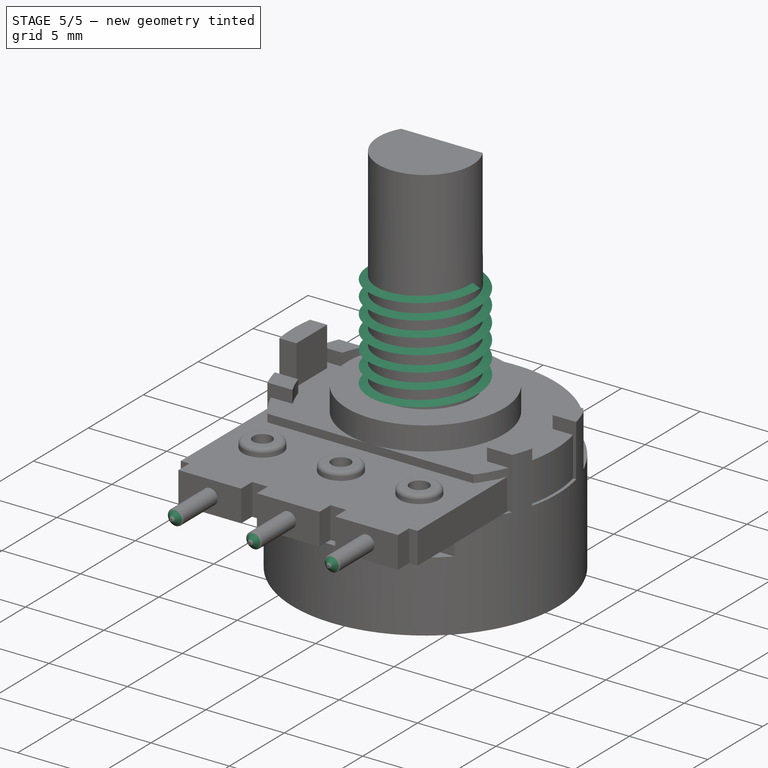
[diagram: stage 5 of 5 — iso view after this stage's code; geometry added in this stage tinted green]
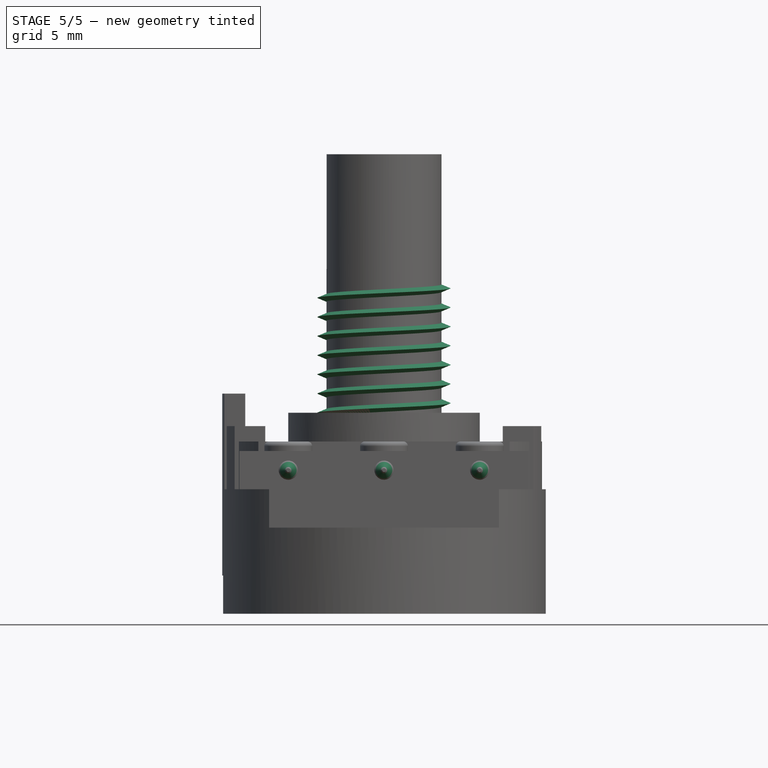
[diagram: stage 5 of 5 — front view after this stage's code; geometry added in this stage tinted green]
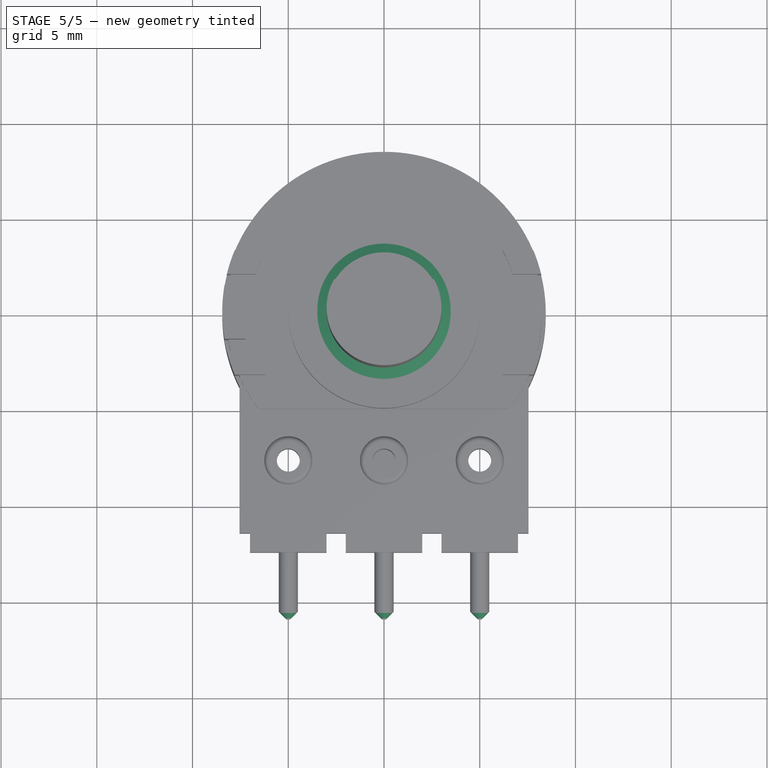
[diagram: stage 5 of 5 — top view after this stage's code; geometry added in this stage tinted green]
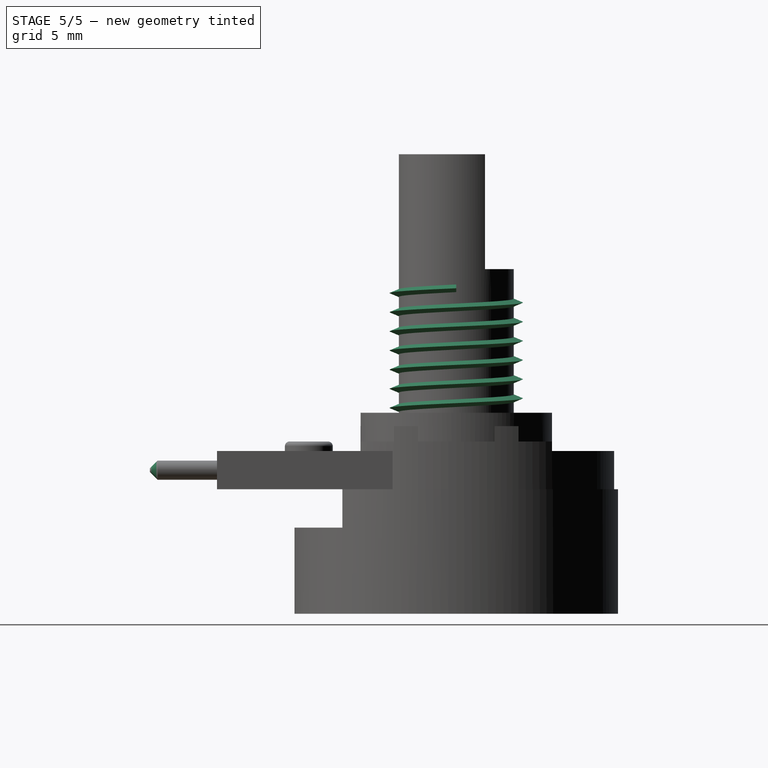
[diagram: stage 5 of 5 — right view after this stage's code; geometry added in this stage tinted green]
FEATURE [Sketcher::SketchObject] Sketch016
  FullyConstrained = false
  MapMode = 5
  Placement = pos=(0,0,0) rot=(1,0,0;1.5708rad)
  Support = -> [XZ_Plane]
  sketch-geometry (12):
    g0: LineSegment StartX=0 StartY=0 StartZ=0 EndX=-3 EndY=0 EndZ=0
    g1: LineSegment StartX=-3 StartY=0 StartZ=0 EndX=-3 EndY=17.2208 EndZ=0
    g2: GeomPoint X=-3 Y=10.5 Z=0
    g3: LineSegment StartX=-3 StartY=10.5 StartZ=0 EndX=-1.87908 EndY=10.5 EndZ=0
    g4: LineSegment StartX=-2.51716 StartY=10.9 StartZ=0 EndX=-2.51716 EndY=10.1 EndZ=0
    g5: LineSegment StartX=-2.51716 StartY=10.1 StartZ=0 EndX=-3.48284 EndY=10.5 EndZ=0
    g6: LineSegment StartX=-3.48284 StartY=10.5 StartZ=0 EndX=-2.51716 EndY=10.9 EndZ=0
    g7: LineSegment StartX=-2.51716 StartY=10.9 StartZ=0 EndX=-2.51716 EndY=10.1 EndZ=0
    g8: LineSegment StartX=-2.51716 StartY=10.1 StartZ=0 EndX=-3.48284 EndY=10.5 EndZ=0
    g9: LineSegment StartX=-3.48284 StartY=10.5 StartZ=0 EndX=-2.51716 EndY=10.9 EndZ=0
    g10: LineSegment StartX=-3 StartY=10.5 StartZ=0 EndX=-3.38148 EndY=10.5 EndZ=0
    g11: GeomPoint X=-2.51716 Y=10.5 Z=0
  constraints (26):
    c: Coincident(g0,g-1)
    c: PointOnObject(g0,g-1)
    c: Coincident(g1,g0)
    c: Vertical(g1)
    c: DistanceX(g0,g0) = 3
    c: PointOnObject(g2,g1)
    c: DistanceY(g0,g2) = 10.5
    c: Coincident(g3,g2)
    c: Horizontal(g3)
    c: Vertical(g4)
    c: Coincident(g5,g4)
    c: Coincident(g6,g5)
    c: Coincident(g6,g4)
    c: Coincident(g7,g4)
    c: Coincident(g7,g4)
    c: Coincident(g8,g7)
    c: Coincident(g8,g5)
    c: Coincident(g9,g8)
    c: Coincident(g9,g7)
    c: Coincident(g10,g2)
    c: Horizontal(g10)
    c: PointOnObject(g8,g10)
    c: Angle(g8,g9) = 0.785398
    c: Symmetric(g7,g7,g11)
    c: Symmetric(g11,g8,g2)
    c: DistanceY(g11,g7) = 0.4
FEATURE [Part::Sweep] Sweep
  Frenet = true
  Sections = -> [Sketch016]
  Solid = true
  Spine = -> Helix [Edge1,Edge2,Edge3,Edge4,Edge5,Edge6,Edge7]
  Transition = 1
FEATURE [PartDesign::Fillet] Fillet002
  Base = -> Fillet001 [Edge72]
  BaseFeature = -> Fillet001
  Radius = 0.25
  SupportTransform = false
FEATURE [PartDesign::Chamfer] Chamfer
  Angle = 45
  Base = -> Fillet002 [Edge247]
  BaseFeature = -> Fillet002
  ChamferType = 0
  FlipDirection = false
  Size = 0.4
  Size2 = 1
  SupportTransform = false
FEATURE [PartDesign::Chamfer] Chamfer001
  Angle = 45
  Base = -> Chamfer [Edge234]
  BaseFeature = -> Chamfer
  ChamferType = 0
  FlipDirection = false
  Size = 0.4
  Size2 = 1
  SupportTransform = false
FEATURE [PartDesign::Chamfer] Chamfer002
  Angle = 45
  Base = -> Chamfer001 [Edge211]
  BaseFeature = -> Chamfer001
  ChamferType = 0
  FlipDirection = false
  Size = 0.4
  Size2 = 1
  SupportTransform = false
FEATURE [PartDesign::Body] Body
  Group = -> [Sketch,Pad,Sketch001,Pocket,Sketch002,Pad001,Sketch003,Pad002,Sketch004,Pad003,Sketch005,Pad004,Sketch006,Pad005,Sketch007,Pad006,Sketch008,Pad007,Sketch009,Pad008,Sketch010,Pocket001,Sketch011,Pad009,Sketch012,Pad010,Sketch013,Pocket002,Sketch014,Sketch015,Pocket003,Sketch016,Sketch017,Pocket004,Fillet,Fillet001,Fillet002,Chamfer,Chamfer001,Chamfer002]
  Origin = -> Origin
  Tip = -> Chamfer002
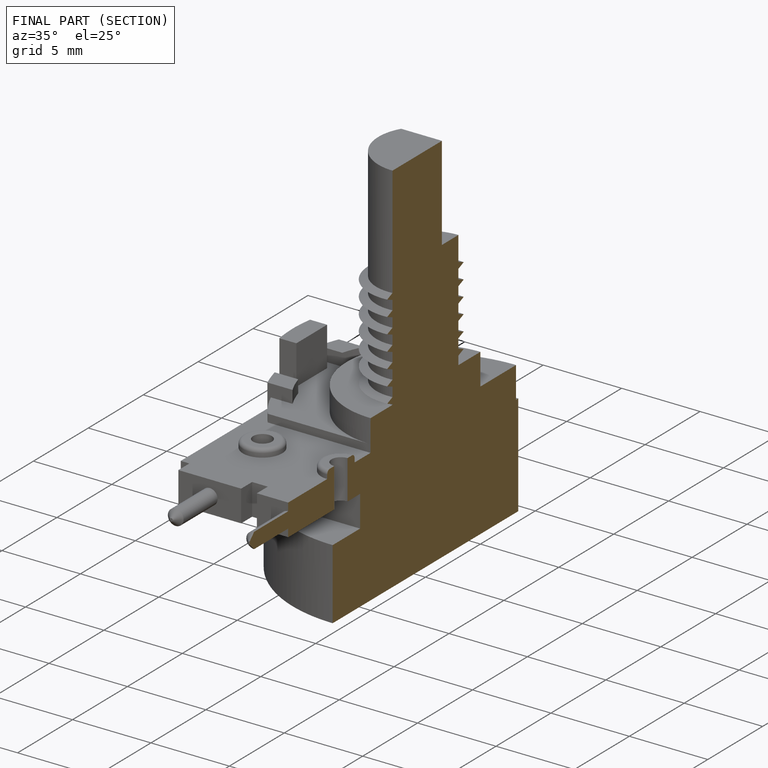
[diagram: finished part — half-section view (interior)]
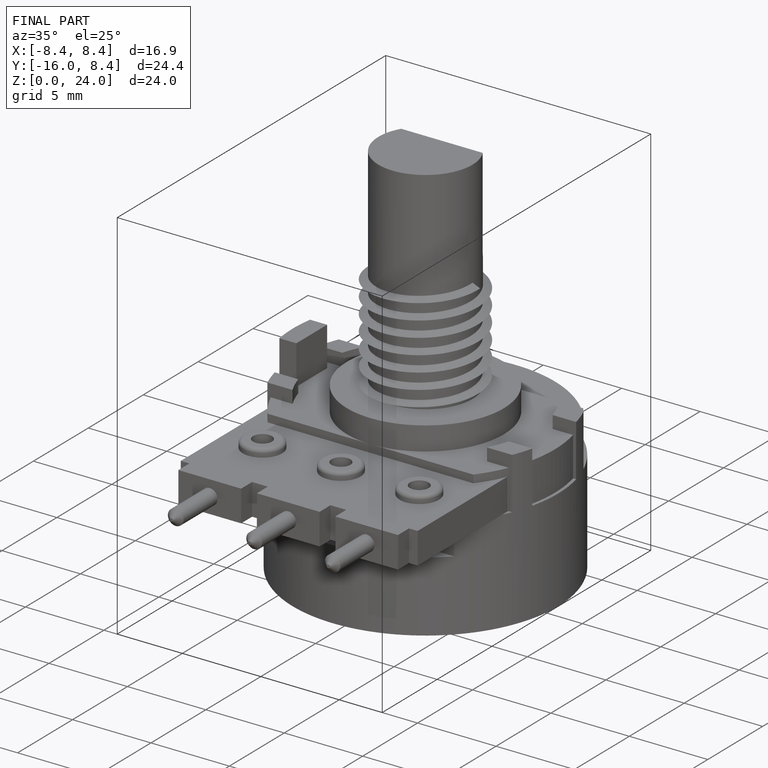
[diagram: finished part — iso view with bounding-box wireframe]
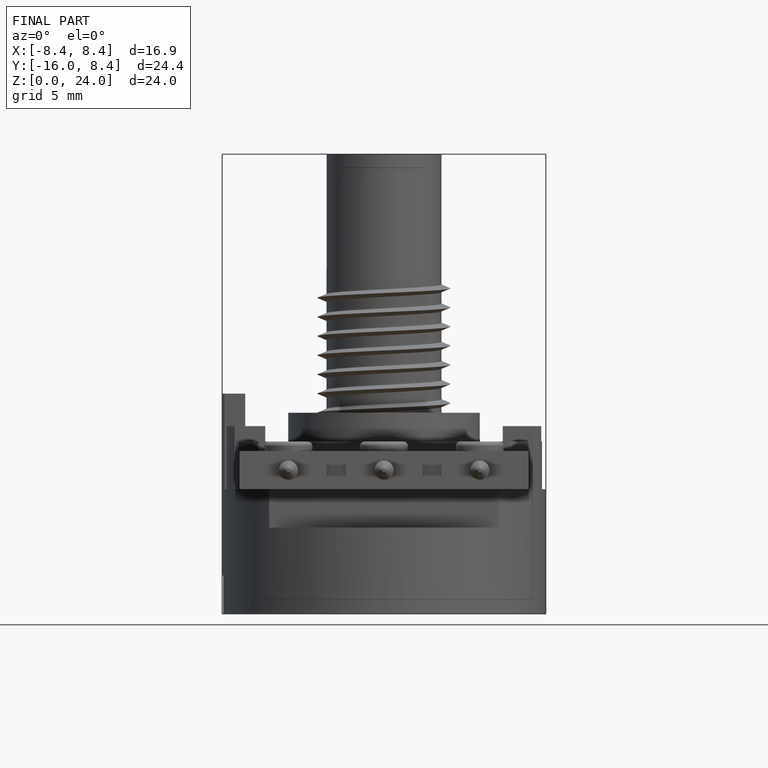
[diagram: finished part — front view with bounding-box wireframe]
